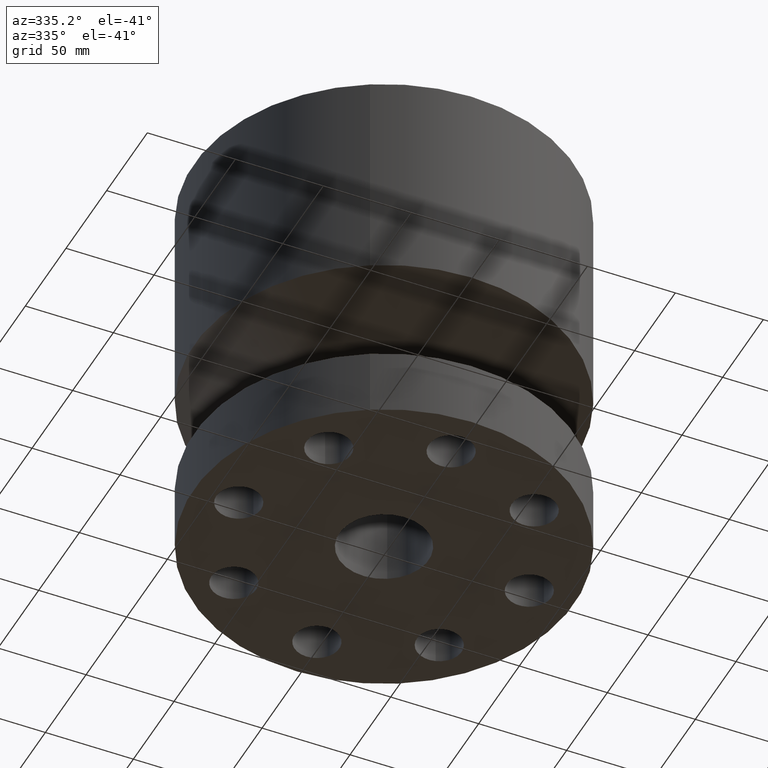
[diagram: clean part render]
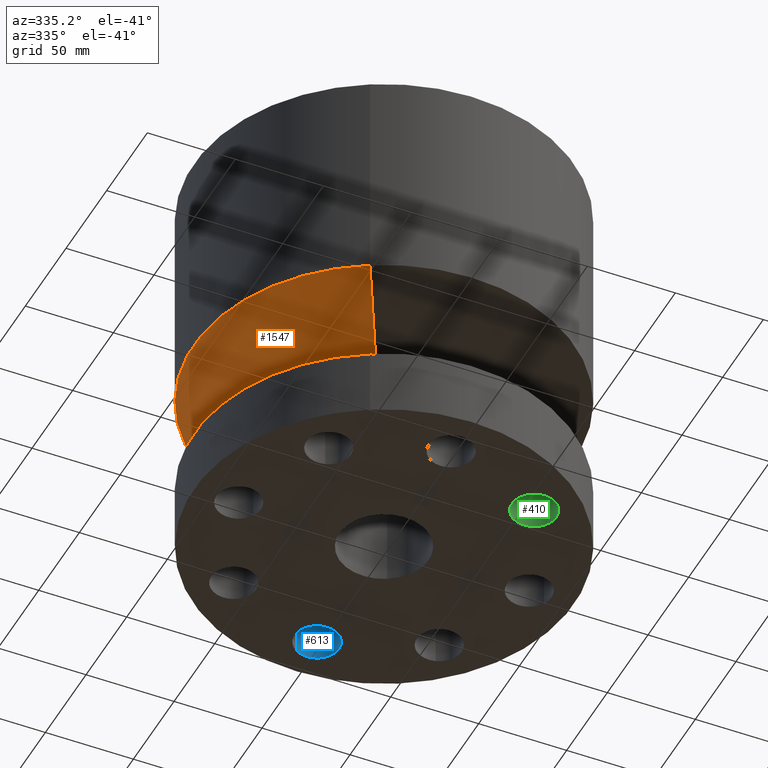
[diagram: same view with three faces highlighted in distinct colors, each labeled with its STEP entity id]
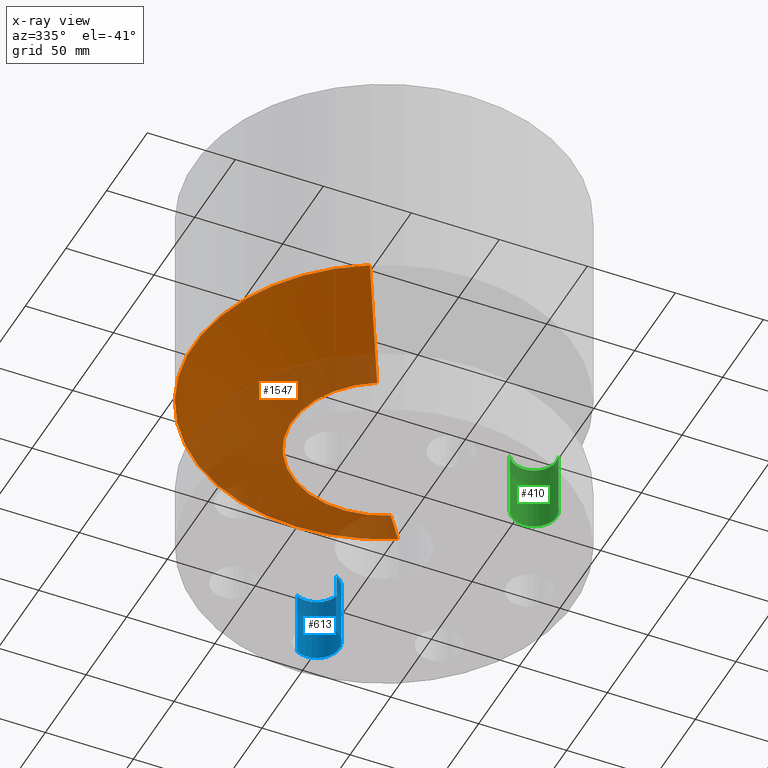
[diagram: x-ray of the same camera — body ghosted, the three highlighted faces saturated]
A machine part, auxiliary view with three faces highlighted in distinct colors.
The next image is the same camera in x-ray (body ghosted, the three faces saturated) — at least one of them is partly hidden behind the body in this view.
Their STEP definitions:

[orange] entity #1547 — the highlighted conical surface has half-angle 60 deg.
#982=AXIS2_PLACEMENT_3D('Circle Axis2P3D',#980,#981,$) ;
#1508=AXIS2_PLACEMENT_3D('Cone Axis2P3D',#1505,#1506,#1507) ;
#1538=AXIS2_PLACEMENT_3D('Circle Axis2P3D',#1536,#1537,$) ;
#958=CARTESIAN_POINT('Vertex',(0.987616609529,1.8078200775,2.62000000001)) ;
#965=CARTESIAN_POINT('Vertex',(-0.987616609529,-1.8078200775,2.62000000001)) ;
#980=CARTESIAN_POINT('Axis2P3D Location',(0.,0.,2.62000000001)) ;
#1505=CARTESIAN_POINT('Axis2P3D Location',(0.,0.,2.62000000001)) ;
#1510=CARTESIAN_POINT('Line Origine',(1.5125875743,2.76877298278,3.25219854478)) ;
#1514=CARTESIAN_POINT('Vertex',(2.03755853908,3.72972588805,3.88439708954)) ;
#1521=CARTESIAN_POINT('Vertex',(-2.03755853908,-3.72972588805,3.88439708954)) ;
#1524=CARTESIAN_POINT('Line Origine',(-1.5125875743,-2.76877298278,3.25219854478)) ;
#1536=CARTESIAN_POINT('Axis2P3D Location',(0.,0.,3.88439708954)) ;
#981=DIRECTION('Axis2P3D Direction',(0.,0.,-0.0393700787402)) ;
#1506=DIRECTION('Axis2P3D Direction',(-0.,-0.,0.0393700787402)) ;
#1507=DIRECTION('Axis2P3D XDirection',(0.0188750212049,0.0345504945626,0.)) ;
#1511=DIRECTION('Vector Direction',(0.0163462478604,0.0299216060045,0.0196850393701)) ;
#1525=DIRECTION('Vector Direction',(-0.0163462478604,-0.0299216060045,0.0196850393701)) ;
#1537=DIRECTION('Axis2P3D Direction',(-0.,0.,0.0393700787402)) ;
#1512=VECTOR('Line Direction',#1511,0.0393700787402) ;
#1526=VECTOR('Line Direction',#1525,0.0393700787402) ;
#1542=ORIENTED_EDGE('',*,*,#984,.F.) ;
#1543=ORIENTED_EDGE('',*,*,#1528,.T.) ;
#1544=ORIENTED_EDGE('',*,*,#1540,.T.) ;
#1545=ORIENTED_EDGE('',*,*,#1516,.F.) ;
#1547=ADVANCED_FACE('PartBody',(#1546),#1509,.T.) ;
#983=CIRCLE('generated circle',#982,2.06000000001) ;
#1539=CIRCLE('generated circle',#1538,4.25000000002) ;
#1509=CONICAL_SURFACE('Cone',#1508,2.06000000001,1.0471975512) ;
#984=EDGE_CURVE('',#966,#959,#983,.T.) ;
#1516=EDGE_CURVE('',#959,#1515,#1513,.T.) ;
#1528=EDGE_CURVE('',#966,#1522,#1527,.T.) ;
#1540=EDGE_CURVE('',#1522,#1515,#1539,.F.) ;
#1541=EDGE_LOOP('',(#1542,#1543,#1544,#1545)) ;
#1546=FACE_OUTER_BOUND('',#1541,.T.) ;
#1513=LINE('Line',#1510,#1512) ;
#1527=LINE('Line',#1524,#1526) ;
#959=VERTEX_POINT('',#958) ;
#966=VERTEX_POINT('',#965) ;
#1515=VERTEX_POINT('',#1514) ;
#1522=VERTEX_POINT('',#1521) ;

[blue] entity #613 — the highlighted cylindrical surface (edge-blend (fillet) strip) has radius 12.7 mm, axis along (0, 0, 1).
#226=AXIS2_PLACEMENT_3D('Circle Axis2P3D',#224,#225,$) ;
#586=AXIS2_PLACEMENT_3D('Cylinder Axis2P3D',#583,#584,#585) ;
#597=AXIS2_PLACEMENT_3D('Circle Axis2P3D',#595,#596,$) ;
#219=CARTESIAN_POINT('Vertex',(0.239712769303,2.81120871907,1.50000000001)) ;
#221=CARTESIAN_POINT('Vertex',(-0.239712769303,3.68879128096,1.50000000001)) ;
#224=CARTESIAN_POINT('Axis2P3D Location',(-7.69288395016E-016,3.25000000001,1.50000000001)) ;
#583=CARTESIAN_POINT('Axis2P3D Location',(-5.97015314587E-016,3.25000000001,0.00393700787402)) ;
#588=CARTESIAN_POINT('Line Origine',(-0.239712769303,3.68879128096,0.750000000003)) ;
#592=CARTESIAN_POINT('Vertex',(-0.239712769303,3.68879128096,2.2401153548E-016)) ;
#595=CARTESIAN_POINT('Axis2P3D Location',(-5.97015314587E-016,3.25000000001,0.)) ;
#599=CARTESIAN_POINT('Vertex',(0.239712769303,2.81120871907,2.2401153548E-016)) ;
#602=CARTESIAN_POINT('Line Origine',(0.239712769303,2.81120871907,0.750000000003)) ;
#225=DIRECTION('Axis2P3D Direction',(0.,0.,-0.0393700787402)) ;
#584=DIRECTION('Axis2P3D Direction',(0.,0.,0.0393700787402)) ;
#585=DIRECTION('Axis2P3D XDirection',(-0.0188750212049,0.0345504945626,0.)) ;
#589=DIRECTION('Vector Direction',(0.,0.,0.0393700787402)) ;
#596=DIRECTION('Axis2P3D Direction',(0.,0.,0.0393700787402)) ;
#603=DIRECTION('Vector Direction',(0.,0.,0.0393700787402)) ;
#590=VECTOR('Line Direction',#589,0.0393700787402) ;
#604=VECTOR('Line Direction',#603,0.0393700787402) ;
#608=ORIENTED_EDGE('',*,*,#594,.T.) ;
#609=ORIENTED_EDGE('',*,*,#601,.T.) ;
#610=ORIENTED_EDGE('',*,*,#606,.F.) ;
#611=ORIENTED_EDGE('',*,*,#228,.F.) ;
#613=ADVANCED_FACE('PartBody',(#612),#587,.F.) ;
#227=CIRCLE('generated circle',#226,0.500000000002) ;
#598=CIRCLE('generated circle',#597,0.500000000002) ;
#587=CYLINDRICAL_SURFACE('generated cylinder',#586,0.500000000002) ;
#228=EDGE_CURVE('',#222,#220,#227,.T.) ;
#594=EDGE_CURVE('',#222,#593,#591,.F.) ;
#601=EDGE_CURVE('',#593,#600,#598,.F.) ;
#606=EDGE_CURVE('',#220,#600,#605,.F.) ;
#607=EDGE_LOOP('',(#608,#609,#610,#611)) ;
#612=FACE_OUTER_BOUND('',#607,.T.) ;
#591=LINE('Line',#588,#590) ;
#605=LINE('Line',#602,#604) ;
#220=VERTEX_POINT('',#219) ;
#222=VERTEX_POINT('',#221) ;
#593=VERTEX_POINT('',#592) ;
#600=VERTEX_POINT('',#599) ;

[green] entity #410 — the highlighted cylindrical surface (edge-blend (fillet) strip) has radius 12.7 mm, axis along (-0, 0, 1).
#127=AXIS2_PLACEMENT_3D('Circle Axis2P3D',#125,#126,$) ;
#371=AXIS2_PLACEMENT_3D('Cylinder Axis2P3D',#368,#369,#370) ;
#401=AXIS2_PLACEMENT_3D('Circle Axis2P3D',#399,#400,$) ;
#125=CARTESIAN_POINT('Axis2P3D Location',(2.29809703887,-2.29809703887,1.50000000001)) ;
#129=CARTESIAN_POINT('Vertex',(1.81832222387,-2.15732727329,1.50000000001)) ;
#131=CARTESIAN_POINT('Vertex',(2.77787185386,-2.43886680444,1.50000000001)) ;
#368=CARTESIAN_POINT('Axis2P3D Location',(2.29809703887,-2.29809703887,0.00393700787402)) ;
#373=CARTESIAN_POINT('Line Origine',(2.77787185386,-2.43886680444,0.750000000003)) ;
#377=CARTESIAN_POINT('Vertex',(2.77787185386,-2.43886680444,2.2401153548E-016)) ;
#384=CARTESIAN_POINT('Vertex',(1.81832222387,-2.15732727329,2.2401153548E-016)) ;
#387=CARTESIAN_POINT('Line Origine',(1.81832222387,-2.15732727329,0.750000000003)) ;
#399=CARTESIAN_POINT('Axis2P3D Location',(2.29809703887,-2.29809703887,0.)) ;
#126=DIRECTION('Axis2P3D Direction',(0.,0.,-0.0393700787402)) ;
#369=DIRECTION('Axis2P3D Direction',(-0.,0.,0.0393700787402)) ;
#370=DIRECTION('Axis2P3D XDirection',(0.0377775444876,-0.0110842335096,0.)) ;
#374=DIRECTION('Vector Direction',(0.,0.,0.0393700787402)) ;
#388=DIRECTION('Vector Direction',(0.,0.,0.0393700787402)) ;
#400=DIRECTION('Axis2P3D Direction',(-0.,0.,0.0393700787402)) ;
#375=VECTOR('Line Direction',#374,0.0393700787402) ;
#389=VECTOR('Line Direction',#388,0.0393700787402) ;
#405=ORIENTED_EDGE('',*,*,#391,.T.) ;
#406=ORIENTED_EDGE('',*,*,#403,.T.) ;
#407=ORIENTED_EDGE('',*,*,#379,.F.) ;
#408=ORIENTED_EDGE('',*,*,#133,.F.) ;
#410=ADVANCED_FACE('PartBody',(#409),#372,.F.) ;
#128=CIRCLE('generated circle',#127,0.500000000002) ;
#402=CIRCLE('generated circle',#401,0.500000000002) ;
#372=CYLINDRICAL_SURFACE('generated cylinder',#371,0.500000000002) ;
#133=EDGE_CURVE('',#130,#132,#128,.T.) ;
#379=EDGE_CURVE('',#132,#378,#376,.F.) ;
#391=EDGE_CURVE('',#130,#385,#390,.F.) ;
#403=EDGE_CURVE('',#385,#378,#402,.F.) ;
#404=EDGE_LOOP('',(#405,#406,#407,#408)) ;
#409=FACE_OUTER_BOUND('',#404,.T.) ;
#376=LINE('Line',#373,#375) ;
#390=LINE('Line',#387,#389) ;
#130=VERTEX_POINT('',#129) ;
#132=VERTEX_POINT('',#131) ;
#378=VERTEX_POINT('',#377) ;
#385=VERTEX_POINT('',#384) ;